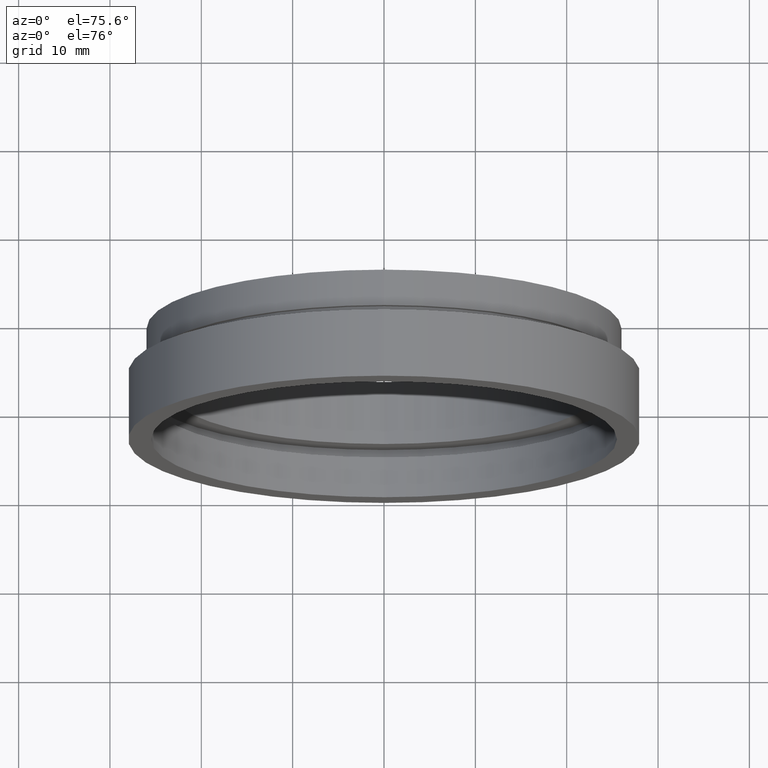
[diagram: clean part render]
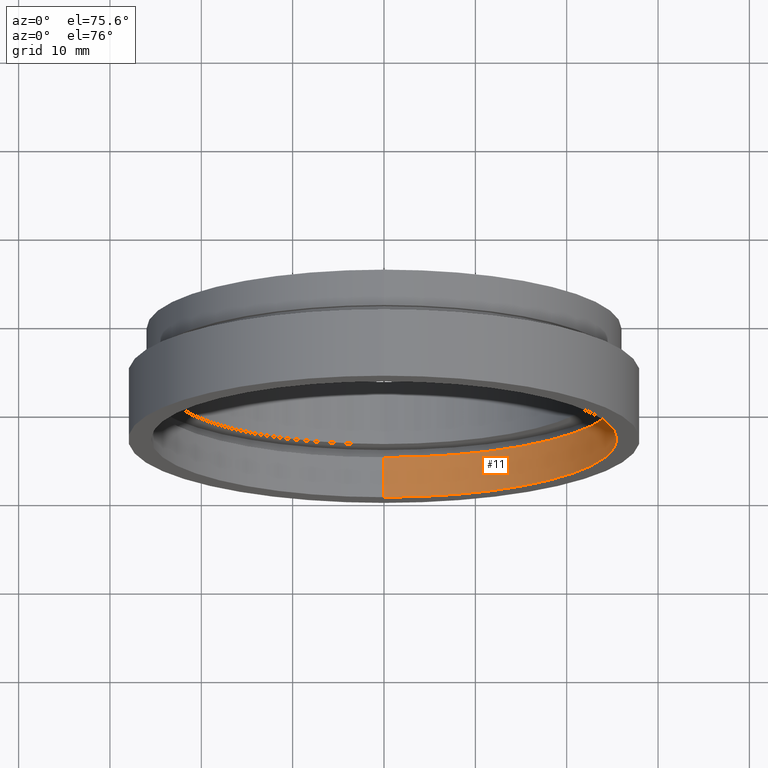
[diagram: same view with one face highlighted and labeled with its STEP entity id]
A machine part, auxiliary view. The second image highlights one B-rep face of the part: STEP entity #11.
In plain terms, the highlighted cylindrical surface (partial cylindrical patch) has radius 25.5 mm, axis along (-0, 1, -0).
Its self-contained STEP definition (entity closure, byte-faithful):
#11 = ADVANCED_FACE ( 'NONE', ( #494 ), #536, .F. ) ;
#13 = CARTESIAN_POINT ( 'NONE',  ( 3.122849337825753000E-015, 161.3761669434274500, -25.50000000000001800 ) ) ;
#47 = CARTESIAN_POINT ( 'NONE',  ( 0.0000000000000000000, 4.499999999999976000, 25.50000000000001800 ) ) ;
#61 = DIRECTION ( 'NONE',  ( -0.0000000000000000000, 1.000000000000000000, -0.0000000000000000000 ) ) ;
#65 = CARTESIAN_POINT ( 'NONE',  ( 0.0000000000000000000, 161.3761669434274500, 0.0000000000000000000 ) ) ;
#72 = CIRCLE ( 'NONE', #466, 25.50000000000001800 ) ;
#182 = EDGE_CURVE ( 'NONE', #350, #486, #392, .T. ) ;
#187 = CARTESIAN_POINT ( 'NONE',  ( 3.122849337825753000E-015, -2.775557561562891400E-014, -25.50000000000001800 ) ) ;
#201 = CARTESIAN_POINT ( 'NONE',  ( 0.0000000000000000000, -2.775557561562891400E-014, 25.50000000000001800 ) ) ;
#209 = DIRECTION ( 'NONE',  ( 0.0000000000000000000, 0.0000000000000000000, 1.000000000000000000 ) ) ;
#262 = ORIENTED_EDGE ( 'NONE', *, *, #271, .F. ) ;
#269 = VECTOR ( 'NONE', #436, 1000.000000000000000 ) ;
#271 = EDGE_CURVE ( 'NONE', #350, #622, #326, .T. ) ;
#276 = ORIENTED_EDGE ( 'NONE', *, *, #478, .F. ) ;
#326 = CIRCLE ( 'NONE', #606, 25.50000000000001800 ) ;
#341 = DIRECTION ( 'NONE',  ( -0.0000000000000000000, 1.000000000000000000, -0.0000000000000000000 ) ) ;
#350 = VERTEX_POINT ( 'NONE', #201 ) ;
#352 = CARTESIAN_POINT ( 'NONE',  ( 0.0000000000000000000, 4.499999999999976000, 0.0000000000000000000 ) ) ;
#355 = DIRECTION ( 'NONE',  ( -0.0000000000000000000, 1.000000000000000000, -0.0000000000000000000 ) ) ;
#371 = DIRECTION ( 'NONE',  ( -0.0000000000000000000, 1.000000000000000000, -0.0000000000000000000 ) ) ;
#390 = CARTESIAN_POINT ( 'NONE',  ( 3.122849337825753000E-015, 4.499999999999976000, -25.50000000000001800 ) ) ;
#392 = LINE ( 'NONE', #563, #269 ) ;
#404 = ORIENTED_EDGE ( 'NONE', *, *, #182, .T. ) ;
#414 = EDGE_LOOP ( 'NONE', ( #276, #262, #404, #577 ) ) ;
#436 = DIRECTION ( 'NONE',  ( -0.0000000000000000000, 1.000000000000000000, -0.0000000000000000000 ) ) ;
#446 = EDGE_CURVE ( 'NONE', #486, #502, #72, .T. ) ;
#458 = LINE ( 'NONE', #13, #559 ) ;
#466 = AXIS2_PLACEMENT_3D ( 'NONE', #352, #61, #209 ) ;
#478 = EDGE_CURVE ( 'NONE', #622, #502, #458, .T. ) ;
#486 = VERTEX_POINT ( 'NONE', #47 ) ;
#491 = AXIS2_PLACEMENT_3D ( 'NONE', #65, #371, #523 ) ;
#494 = FACE_OUTER_BOUND ( 'NONE', #414, .T. ) ;
#502 = VERTEX_POINT ( 'NONE', #390 ) ;
#523 = DIRECTION ( 'NONE',  ( 0.0000000000000000000, 0.0000000000000000000, 1.000000000000000000 ) ) ;
#536 = CYLINDRICAL_SURFACE ( 'NONE', #491, 25.50000000000001800 ) ;
#559 = VECTOR ( 'NONE', #355, 1000.000000000000000 ) ;
#563 = CARTESIAN_POINT ( 'NONE',  ( 0.0000000000000000000, 161.3761669434274500, 25.50000000000001800 ) ) ;
#577 = ORIENTED_EDGE ( 'NONE', *, *, #446, .T. ) ;
#589 = DIRECTION ( 'NONE',  ( 0.0000000000000000000, 0.0000000000000000000, 1.000000000000000000 ) ) ;
#606 = AXIS2_PLACEMENT_3D ( 'NONE', #621, #341, #589 ) ;
#621 = CARTESIAN_POINT ( 'NONE',  ( 0.0000000000000000000, -2.775557561562891400E-014, 0.0000000000000000000 ) ) ;
#622 = VERTEX_POINT ( 'NONE', #187 ) ;